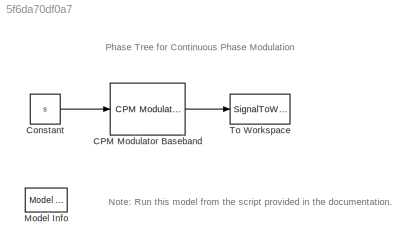
MODEL slx_5f6da70df0a7
KIND model
BLOCK [Reference] CPM Modulator Baseband  REF=commdigbbndcpm2/CPM
Modulator
Baseband
  BT = 0.3
  Mnum = 2
  Ports = [1, 1]
  RateOptions = Enforce single-rate processing
  SourceBlock = commdigbbndcpm2/CPM\nModulator\nBaseband
  SourceType = CPM Modulator Baseband
  UserDataPersistent = on
  inputType = Integer
  mainLobePulseLength = 1
  mappingType = Binary
  modIdx = 2/3
  outDataType = double
  phaseOffset = 0
  preHistory = 1
  pulseLength = 2
  pulseShape = Raised Cosine
  rollOff = 0.2
  samplesPerSymbol = 8
BLOCK [Constant] Constant
  FramePeriod = 1
  SampleTime = 1
  SamplingMode = Frame based
  Value = s
  VectorParams1D = off
BLOCK [Reference] Model Info  REF=simulink/Model-Wide
Utilities/Model Info
  BlockCM = none
  DisplayStringWithTags = Info
  Frame = on
  HorizontalTextAlignment = Center
  InitialBlockCM = None
  LeftAlignmentValue = 0.5
  MaskDisplayString = Info
  Ports = []
  SourceBlock = simulink/Model-Wide\nUtilities/Model Info
  SourceBlockDiagram = doc_phasetree
  SourceType = CMBlock
  TagMaxNumber = 20
BLOCK [SignalToWorkspace] To Workspace
  MaxDataPoints = inf
  Ports = [1]
  VariableName = x
ANNOTATION (root): Note: Run this model from the script provided in the documentation.
ANNOTATION (root): Phase Tree for Continuous Phase Modulation
LINE CPM Modulator Baseband:1 -> To Workspace:1
LINE Constant:1 -> CPM Modulator Baseband:1
